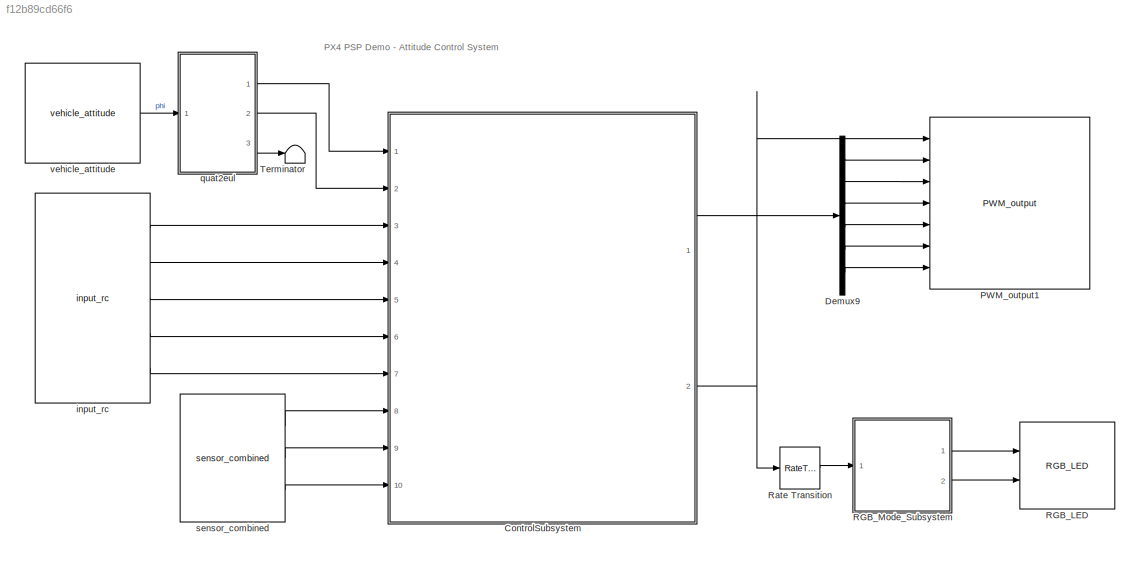
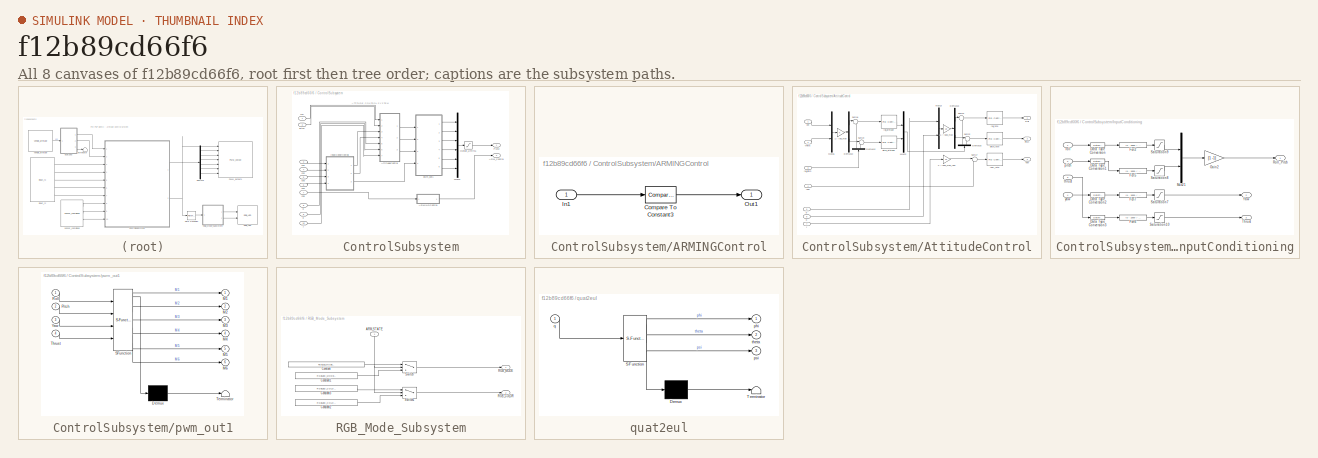
[diagram: thumbnail index - all 8 canvases of the model, root first then tree order]
MODEL slx_f12b89cd66f6
KIND model
CONFIG AbsTol = auto
CONFIG EnableMultiTasking = on
CONFIG FixedStep = auto
CONFIG MaxStep = auto
CONFIG MinStep = auto
CONFIG PostLoadFcn = kFactor = 1.2;\n\nKpRollAttitude = 0.630138625117681 / kFactor;\nKiRollAttitude = 0.0552303199591522 / kFactor;\n\nKpPitchAttitude = 0.630138625117681 / kFactor;\nKiPitchAttitude = 0.0552303199591522 / kFactor;\n\nKpRollRate = 1.31533836563383 / kFactor;\nKiRollRate = 0.460338699849681 / kFactor;\n\nKpPitchRate = 1.31533836563383 / kFactor;\nKiPitchRate = 0.460338699849681 / kFactor;\n\nKpYawRate = 1.3153383656...<+57ch>
CONFIG RelTol = 1e-3
CONFIG SampleTimeConstraint = Unconstrained
CONFIG Solver = FixedStepDiscrete
CONFIG SolverName = FixedStepDiscrete
CONFIG StartTime = 0.0
CONFIG StopTime = inf
BLOCK [SubSystem] ControlSubsystem
  Ports = [10, 2]
  RequestExecContextInheritance = off
  Variant = off
BLOCK [SubSystem] ControlSubsystem/ARMINGControl
  Ports = [1, 1]
  RequestExecContextInheritance = off
  Variant = off
BLOCK [Reference] ControlSubsystem/ARMINGControl/Compare To Constant3  REF=simulink/Logic and Bit
Operations/Compare
To Constant
  Ports = [1, 1]
  SourceBlock = simulink/Logic and Bit\nOperations/Compare\nTo Constant
  SourceProductBaseCode = SL
  SourceProductName = Simulink
  SourceType = Compare To Constant
BLOCK [Inport] ControlSubsystem/ARMINGControl/In1
  IconDisplay = Port number
BLOCK [Outport] ControlSubsystem/ARMINGControl/Out1
  IconDisplay = Port number
BLOCK [Outport] ControlSubsystem/ARM_Control
  IconDisplay = Port number
  Port = 2
  PortDimensions = 1
  SamplingMode = Sample based
  SignalType = real
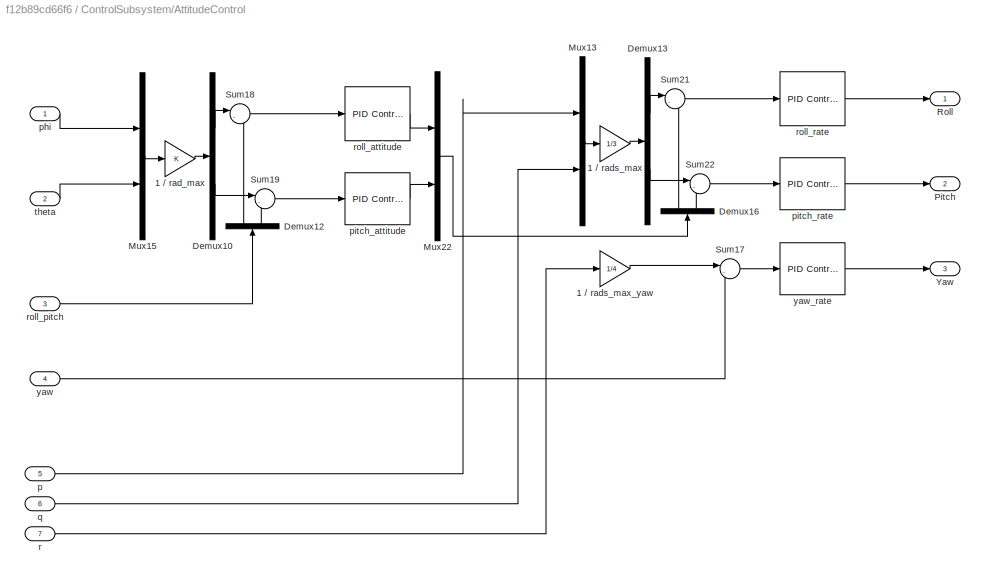
BLOCK [SubSystem] ControlSubsystem/AttitudeControl
  Ports = [7, 3]
  RequestExecContextInheritance = off
  Variant = off
BLOCK [Gain] ControlSubsystem/AttitudeControl/1 // rad_max
  OutDataTypeStr = Inherit: Inherit via internal rule
  ParamDataTypeStr = Inherit: Inherit via internal rule
  SaturateOnIntegerOverflow = off
BLOCK [Gain] ControlSubsystem/AttitudeControl/1 // rads_max
  Gain = 1/3
  OutDataTypeStr = Inherit: Inherit via internal rule
  ParamDataTypeStr = Inherit: Inherit via internal rule
  SaturateOnIntegerOverflow = off
BLOCK [Gain] ControlSubsystem/AttitudeControl/1 // rads_max_yaw
  Gain = 1/4
  OutDataTypeStr = Inherit: Inherit via internal rule
  ParamDataTypeStr = Inherit: Inherit via internal rule
  SaturateOnIntegerOverflow = off
BLOCK [Demux] ControlSubsystem/AttitudeControl/Demux10
  DisplayOption = bar
  Outputs = 2
  Ports = [1, 2]
BLOCK [Demux] ControlSubsystem/AttitudeControl/Demux12
  DisplayOption = bar
  Outputs = 2
  Ports = [1, 2]
BLOCK [Demux] ControlSubsystem/AttitudeControl/Demux13
  DisplayOption = bar
  Outputs = 2
  Ports = [1, 2]
BLOCK [Demux] ControlSubsystem/AttitudeControl/Demux16
  DisplayOption = bar
  Outputs = 2
  Ports = [1, 2]
BLOCK [Mux] ControlSubsystem/AttitudeControl/Mux13
  DisplayOption = bar
  Inputs = 2
  Ports = [2, 1]
BLOCK [Mux] ControlSubsystem/AttitudeControl/Mux15
  DisplayOption = bar
  Inputs = 2
  Ports = [2, 1]
BLOCK [Mux] ControlSubsystem/AttitudeControl/Mux22
  DisplayOption = bar
  Inputs = 2
  Ports = [2, 1]
BLOCK [Outport] ControlSubsystem/AttitudeControl/Pitch
  IconDisplay = Port number
  Port = 2
BLOCK [Outport] ControlSubsystem/AttitudeControl/Roll
  IconDisplay = Port number
BLOCK [Sum] ControlSubsystem/AttitudeControl/Sum17
  IconShape = round
  InputSameDT = off
  Inputs = |-+
  OutDataTypeStr = Inherit: Inherit via internal rule
  Ports = [2, 1]
  SaturateOnIntegerOverflow = off
BLOCK [Sum] ControlSubsystem/AttitudeControl/Sum18
  IconShape = round
  InputSameDT = off
  Inputs = |-+
  OutDataTypeStr = Inherit: Inherit via internal rule
  Ports = [2, 1]
  SaturateOnIntegerOverflow = off
BLOCK [Sum] ControlSubsystem/AttitudeControl/Sum19
  IconShape = round
  InputSameDT = off
  Inputs = |-+
  OutDataTypeStr = Inherit: Inherit via internal rule
  Ports = [2, 1]
  SaturateOnIntegerOverflow = off
BLOCK [Sum] ControlSubsystem/AttitudeControl/Sum21
  IconShape = round
  InputSameDT = off
  Inputs = |-+
  OutDataTypeStr = Inherit: Inherit via internal rule
  Ports = [2, 1]
  SaturateOnIntegerOverflow = off
BLOCK [Sum] ControlSubsystem/AttitudeControl/Sum22
  IconShape = round
  InputSameDT = off
  Inputs = |-+
  OutDataTypeStr = Inherit: Inherit via internal rule
  Ports = [2, 1]
  SaturateOnIntegerOverflow = off
BLOCK [Outport] ControlSubsystem/AttitudeControl/Yaw
  IconDisplay = Port number
  Port = 3
BLOCK [Inport] ControlSubsystem/AttitudeControl/p
  IconDisplay = Port number
  Port = 5
BLOCK [Inport] ControlSubsystem/AttitudeControl/phi
  IconDisplay = Port number
BLOCK [Reference] ControlSubsystem/AttitudeControl/pitch_attitude  REF=simulink/Continuous/PID Controller
  Ports = [1, 1]
  SourceBlock = simulink/Continuous/PID Controller
  SourceProductBaseCode = SL
  SourceProductName = Simulink
  SourceType = PID 1dof
BLOCK [Reference] ControlSubsystem/AttitudeControl/pitch_rate  REF=simulink/Continuous/PID Controller
  Ports = [1, 1]
  SourceBlock = simulink/Continuous/PID Controller
  SourceProductBaseCode = SL
  SourceProductName = Simulink
  SourceType = PID 1dof
BLOCK [Inport] ControlSubsystem/AttitudeControl/q
  IconDisplay = Port number
  Port = 6
BLOCK [Inport] ControlSubsystem/AttitudeControl/r
  IconDisplay = Port number
  Port = 7
BLOCK [Reference] ControlSubsystem/AttitudeControl/roll_attitude  REF=simulink/Continuous/PID Controller
  Ports = [1, 1]
  SourceBlock = simulink/Continuous/PID Controller
  SourceProductBaseCode = SL
  SourceProductName = Simulink
  SourceType = PID 1dof
BLOCK [Inport] ControlSubsystem/AttitudeControl/roll_pitch
  IconDisplay = Port number
  Port = 3
BLOCK [Reference] ControlSubsystem/AttitudeControl/roll_rate  REF=simulink/Continuous/PID Controller
  Ports = [1, 1]
  SourceBlock = simulink/Continuous/PID Controller
  SourceProductBaseCode = SL
  SourceProductName = Simulink
  SourceType = PID 1dof
BLOCK [Inport] ControlSubsystem/AttitudeControl/theta
  IconDisplay = Port number
  Port = 2
BLOCK [Inport] ControlSubsystem/AttitudeControl/yaw
  IconDisplay = Port number
  Port = 4
BLOCK [Reference] ControlSubsystem/AttitudeControl/yaw_rate  REF=simulink/Continuous/PID Controller
  Ports = [1, 1]
  SourceBlock = simulink/Continuous/PID Controller
  SourceProductBaseCode = SL
  SourceProductName = Simulink
  SourceType = PID 1dof
BLOCK [SubSystem] ControlSubsystem/InputConditioning
  Ports = [4, 3]
  RequestExecContextInheritance = off
  Variant = off
BLOCK [DataTypeConversion] ControlSubsystem/InputConditioning/Data Type Conversion
  OutDataTypeStr = single
  RndMeth = Floor
  SaturateOnIntegerOverflow = off
BLOCK [DataTypeConversion] ControlSubsystem/InputConditioning/Data Type Conversion1
  OutDataTypeStr = single
  RndMeth = Floor
  SaturateOnIntegerOverflow = off
BLOCK [DataTypeConversion] ControlSubsystem/InputConditioning/Data Type Conversion2
  OutDataTypeStr = single
  RndMeth = Floor
  SaturateOnIntegerOverflow = off
BLOCK [DataTypeConversion] ControlSubsystem/InputConditioning/Data Type Conversion3
  OutDataTypeStr = single
  RndMeth = Floor
  SaturateOnIntegerOverflow = off
BLOCK [Fcn] ControlSubsystem/InputConditioning/Fcn2
  Expr = (u - 1500) / 500
BLOCK [Fcn] ControlSubsystem/InputConditioning/Fcn5
  Expr = (u - 1500) / 500
BLOCK [Fcn] ControlSubsystem/InputConditioning/Fcn6
  Expr = (u - 1000) / 1000
BLOCK [Fcn] ControlSubsystem/InputConditioning/Fcn7
  Expr = (u - 1500) / 500
BLOCK [Gain] ControlSubsystem/InputConditioning/Gain2
  Gain = [1 -1]
  OutDataTypeStr = Inherit: Inherit via back propagation
  ParamDataTypeStr = Inherit: Inherit via internal rule
  SaturateOnIntegerOverflow = off
BLOCK [Mux] ControlSubsystem/InputConditioning/Mux21
  DisplayOption = bar
  Inputs = 2
  Ports = [2, 1]
BLOCK [Outport] ControlSubsystem/InputConditioning/Roll_Pitch
  IconDisplay = Port number
BLOCK [Saturate] ControlSubsystem/InputConditioning/Saturation10
  InputPortMap = u0
  LowerLimit = 0
  Ports = [1, 1]
  UpperLimit = 1
BLOCK [Saturate] ControlSubsystem/InputConditioning/Saturation7
  InputPortMap = u0
  LowerLimit = -1
  Ports = [1, 1]
  UpperLimit = 1
BLOCK [Saturate] ControlSubsystem/InputConditioning/Saturation8
  InputPortMap = u0
  LowerLimit = -1
  Ports = [1, 1]
  UpperLimit = 1
BLOCK [Saturate] ControlSubsystem/InputConditioning/Saturation9
  InputPortMap = u0
  LowerLimit = -1
  Ports = [1, 1]
  UpperLimit = 1
BLOCK [Outport] ControlSubsystem/InputConditioning/Thrust
  IconDisplay = Port number
  Port = 3
BLOCK [Outport] ControlSubsystem/InputConditioning/Yaw
  IconDisplay = Port number
  Port = 2
BLOCK [Inport] ControlSubsystem/InputConditioning/pitch
  IconDisplay = Port number
  Port = 2
BLOCK [Inport] ControlSubsystem/InputConditioning/roll
  IconDisplay = Port number
BLOCK [Inport] ControlSubsystem/InputConditioning/thrust
  IconDisplay = Port number
  Port = 3
BLOCK [Inport] ControlSubsystem/InputConditioning/yaw
  IconDisplay = Port number
  Port = 4
BLOCK [Mux] ControlSubsystem/Mux12
  DisplayOption = bar
  Inputs = 6
  Ports = [6, 1]
BLOCK [Saturate] ControlSubsystem/Output_Limits1
  InputPortMap = u0
  LowerLimit = 1000
  Ports = [1, 1]
  UpperLimit = 2001
BLOCK [Outport] ControlSubsystem/PWM
  IconDisplay = Port number
  PortDimensions = 6
  SamplingMode = Sample based
  SignalType = real
BLOCK [Inport] ControlSubsystem/ch1
  IconDisplay = Port number
  OutDataTypeStr = uint16
  Port = 3
  PortDimensions = 1
  SamplingMode = Sample based
  SignalType = real
BLOCK [Inport] ControlSubsystem/ch2
  IconDisplay = Port number
  OutDataTypeStr = uint16
  Port = 4
  PortDimensions = 1
  SamplingMode = Sample based
  SignalType = real
BLOCK [Inport] ControlSubsystem/ch3
  IconDisplay = Port number
  OutDataTypeStr = uint16
  Port = 5
  PortDimensions = 1
  SamplingMode = Sample based
  SignalType = real
BLOCK [Inport] ControlSubsystem/ch4
  IconDisplay = Port number
  OutDataTypeStr = uint16
  Port = 6
  PortDimensions = 1
  SamplingMode = Sample based
  SignalType = real
BLOCK [Inport] ControlSubsystem/ch5
  IconDisplay = Port number
  Interpolate = off
  OutDataTypeStr = uint16
  Port = 7
  PortDimensions = 1
  SamplingMode = Sample based
  SignalType = real
BLOCK [Inport] ControlSubsystem/p
  IconDisplay = Port number
  Port = 8
  PortDimensions = 1
  SamplingMode = Sample based
  SignalType = real
BLOCK [Inport] ControlSubsystem/pitch
  IconDisplay = Port number
  Port = 2
  PortDimensions = 1
  SamplingMode = Sample based
  SignalType = real
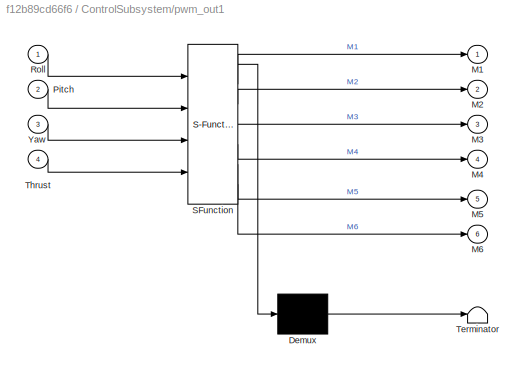
BLOCK [SubSystem] ControlSubsystem/pwm_out1
  ErrorFcn = Stateflow.Translate.translate
  PermitHierarchicalResolution = ExplicitOnly
  Ports = [4, 6]
  RequestExecContextInheritance = off
  SFBlockType = MATLAB Function
  SystemSampleTime = 0.004
  TreatAsAtomicUnit = on
  Variant = off
BLOCK [Demux] ControlSubsystem/pwm_out1/ Demux 
  Outputs = 1
  Ports = [1, 1]
BLOCK [S-Function] ControlSubsystem/pwm_out1/ SFunction 
  EnableBusSupport = off
  FunctionName = sf_sfun
  PortCounts = [4 7]
  Ports = [4, 7]
  SFcnIsStateOwnerBlock = off
  SFunctionDeploymentMode = off
  Tag = Stateflow S-Function px4demo_attitude_system 4
BLOCK [Terminator] ControlSubsystem/pwm_out1/ Terminator 
BLOCK [Outport] ControlSubsystem/pwm_out1/M1
  IconDisplay = Port number
BLOCK [Outport] ControlSubsystem/pwm_out1/M2
  IconDisplay = Port number
  Port = 2
BLOCK [Outport] ControlSubsystem/pwm_out1/M3
  IconDisplay = Port number
  Port = 3
BLOCK [Outport] ControlSubsystem/pwm_out1/M4
  IconDisplay = Port number
  Port = 4
BLOCK [Outport] ControlSubsystem/pwm_out1/M5
  IconDisplay = Port number
  Port = 5
BLOCK [Outport] ControlSubsystem/pwm_out1/M6
  IconDisplay = Port number
  Port = 6
BLOCK [Inport] ControlSubsystem/pwm_out1/Pitch
  IconDisplay = Port number
  Port = 2
BLOCK [Inport] ControlSubsystem/pwm_out1/Roll
  IconDisplay = Port number
BLOCK [Inport] ControlSubsystem/pwm_out1/Thrust
  IconDisplay = Port number
  Port = 4
BLOCK [Inport] ControlSubsystem/pwm_out1/Yaw
  IconDisplay = Port number
  Port = 3
BLOCK [Inport] ControlSubsystem/q
  IconDisplay = Port number
  Port = 9
  PortDimensions = 1
  SamplingMode = Sample based
  SignalType = real
BLOCK [Inport] ControlSubsystem/r
  IconDisplay = Port number
  Port = 10
  PortDimensions = 1
  SamplingMode = Sample based
  SignalType = real
BLOCK [Inport] ControlSubsystem/roll
  IconDisplay = Port number
  OutDataTypeStr = single
  PortDimensions = 1
  SamplingMode = Sample based
  SignalType = real
BLOCK [Demux] Demux9
  DisplayOption = bar
  Outputs = 6
  Ports = [1, 6]
BLOCK [Reference] PWM_output1  REF=pixhawk_slib_sensors_actuators/PWM_output
  Ports = [7]
  SourceBlock = pixhawk_slib_sensors_actuators/PWM_output
  SourceProductName = Pixhawk Target Blocks
  SourceType = PX4_Output_PWM
BLOCK [Reference] RGB_LED  REF=pixhawk_slib_sensors_actuators/RGB_LED
  Ports = [2]
  SourceBlock = pixhawk_slib_sensors_actuators/RGB_LED
  SourceProductName = Pixhawk Target Blocks
  SourceType = PX4_RGBLED - controls the mode and color of the Pixhawk RGB LED
BLOCK [SubSystem] RGB_Mode_Subsystem
  Ports = [1, 2]
  RequestExecContextInheritance = off
  Variant = off
BLOCK [Inport] RGB_Mode_Subsystem/ARM_STATE
  IconDisplay = Port number
BLOCK [Constant] RGB_Mode_Subsystem/Constant
  OutDataTypeStr = Enum: RGBLED_MODE_ENUM
  Value = RGBLED_MODE_ENUM.SL_MODE_BLINK_FAST
BLOCK [Constant] RGB_Mode_Subsystem/Constant1
  OutDataTypeStr = Enum: RGBLED_MODE_ENUM
  Value = RGBLED_MODE_ENUM.SL_MODE_BREATHE
BLOCK [Constant] RGB_Mode_Subsystem/Constant2
  OutDataTypeStr = Enum: RGBLED_COLOR_ENUM
  Value = RGBLED_COLOR_ENUM.SL_COLOR_GREEN
BLOCK [Constant] RGB_Mode_Subsystem/Constant3
  OutDataTypeStr = Enum: RGBLED_COLOR_ENUM
  Value = RGBLED_COLOR_ENUM.SL_COLOR_RED
BLOCK [Outport] RGB_Mode_Subsystem/RGB_COLOR
  IconDisplay = Port number
  Port = 2
BLOCK [Outport] RGB_Mode_Subsystem/RGB_MODE
  IconDisplay = Port number
BLOCK [Switch] RGB_Mode_Subsystem/Switch
  Criteria = u2 ~= 0
  InputSameDT = off
  SaturateOnIntegerOverflow = off
  Threshold = 1500
BLOCK [Switch] RGB_Mode_Subsystem/Switch1
  Criteria = u2 ~= 0
  InputSameDT = off
  SaturateOnIntegerOverflow = off
  Threshold = 1500
BLOCK [RateTransition] Rate Transition
  OutPortSampleTime = 1
BLOCK [Terminator] Terminator
BLOCK [Reference] input_rc  REF=pixhawk_slib_sensors_actuators/input_rc
  Ports = [0, 5]
  SourceBlock = pixhawk_slib_sensors_actuators/input_rc
  SourceProductName = Pixhawk Target Blocks
  SourceType = PX4_Input_RC
BLOCK [SubSystem] quat2eul
  ErrorFcn = Stateflow.Translate.translate
  PermitHierarchicalResolution = ExplicitOnly
  Ports = [1, 3]
  RequestExecContextInheritance = off
  SFBlockType = MATLAB Function
  TreatAsAtomicUnit = on
  Variant = off
BLOCK [Demux] quat2eul/ Demux 
  Outputs = 1
  Ports = [1, 1]
BLOCK [S-Function] quat2eul/ SFunction 
  EnableBusSupport = on
  FunctionName = sf_sfun
  PortCounts = [1 4]
  Ports = [1, 4]
  SFcnIsStateOwnerBlock = off
  SFunctionDeploymentMode = off
  Tag = Stateflow S-Function px4demo_attitude_system 10
BLOCK [Terminator] quat2eul/ Terminator 
BLOCK [Outport] quat2eul/phi
  IconDisplay = Port number
BLOCK [Outport] quat2eul/psi
  IconDisplay = Port number
  Port = 3
BLOCK [Inport] quat2eul/q
  IconDisplay = Port number
BLOCK [Outport] quat2eul/theta
  IconDisplay = Port number
  Port = 2
BLOCK [Reference] sensor_combined  REF=pixhawk_slib_sensors_actuators/sensor_combined
  Ports = [0, 3]
  SourceBlock = pixhawk_slib_sensors_actuators/sensor_combined
  SourceProductName = Pixhawk Target Blocks
  SourceType = PX4_Sensor_Combined
BLOCK [Reference] vehicle_attitude  REF=pixhawk_slib_sensors_actuators/vehicle_attitude
  Ports = [0, 1]
  SourceBlock = pixhawk_slib_sensors_actuators/vehicle_attitude
  SourceProductName = Pixhawk Target Blocks
  SourceType = PX4_Vehicle_Attitude
ANNOTATION (root): PX4 PSP Demo - Attitude Control System
ANNOTATION ControlSubsystem: ATTITUDE CONTROL SYSTEM
LINE ControlSubsystem/ARMINGControl/Compare To Constant3:1 -> ControlSubsystem/ARMINGControl/Out1:1
LINE ControlSubsystem/ARMINGControl/In1:1 -> ControlSubsystem/ARMINGControl/Compare To Constant3:1
LINE ControlSubsystem/ARMINGControl:1 -> ControlSubsystem/ARM_Control:1
LINE ControlSubsystem/AttitudeControl/1 // rad_max:1 -> ControlSubsystem/AttitudeControl/Demux10:1
LINE ControlSubsystem/AttitudeControl/1 // rads_max:1 -> ControlSubsystem/AttitudeControl/Demux13:1
LINE ControlSubsystem/AttitudeControl/1 // rads_max_yaw:1 -> ControlSubsystem/AttitudeControl/Sum17:1
LINE ControlSubsystem/AttitudeControl/Demux10:1 -> ControlSubsystem/AttitudeControl/Sum18:1
LINE ControlSubsystem/AttitudeControl/Demux10:2 -> ControlSubsystem/AttitudeControl/Sum19:1
LINE ControlSubsystem/AttitudeControl/Demux12:1 -> ControlSubsystem/AttitudeControl/Sum18:2
LINE ControlSubsystem/AttitudeControl/Demux12:2 -> ControlSubsystem/AttitudeControl/Sum19:2
LINE ControlSubsystem/AttitudeControl/Demux13:1 -> ControlSubsystem/AttitudeControl/Sum21:1
LINE ControlSubsystem/AttitudeControl/Demux13:2 -> ControlSubsystem/AttitudeControl/Sum22:1
LINE ControlSubsystem/AttitudeControl/Demux16:1 -> ControlSubsystem/AttitudeControl/Sum21:2
LINE ControlSubsystem/AttitudeControl/Demux16:2 -> ControlSubsystem/AttitudeControl/Sum22:2
LINE ControlSubsystem/AttitudeControl/Mux13:1 -> ControlSubsystem/AttitudeControl/1 // rads_max:1
LINE ControlSubsystem/AttitudeControl/Mux15:1 -> ControlSubsystem/AttitudeControl/1 // rad_max:1
LINE ControlSubsystem/AttitudeControl/Mux22:1 -> ControlSubsystem/AttitudeControl/Demux16:1
LINE ControlSubsystem/AttitudeControl/Sum17:1 -> ControlSubsystem/AttitudeControl/yaw_rate:1
LINE ControlSubsystem/AttitudeControl/Sum18:1 -> ControlSubsystem/AttitudeControl/roll_attitude:1
LINE ControlSubsystem/AttitudeControl/Sum19:1 -> ControlSubsystem/AttitudeControl/pitch_attitude:1
LINE ControlSubsystem/AttitudeControl/Sum21:1 -> ControlSubsystem/AttitudeControl/roll_rate:1
LINE ControlSubsystem/AttitudeControl/Sum22:1 -> ControlSubsystem/AttitudeControl/pitch_rate:1
LINE ControlSubsystem/AttitudeControl/p:1 -> ControlSubsystem/AttitudeControl/Mux13:1
LINE ControlSubsystem/AttitudeControl/phi:1 -> ControlSubsystem/AttitudeControl/Mux15:1
LINE ControlSubsystem/AttitudeControl/pitch_attitude:1 -> ControlSubsystem/AttitudeControl/Mux22:2
LINE ControlSubsystem/AttitudeControl/pitch_rate:1 -> ControlSubsystem/AttitudeControl/Pitch:1
LINE ControlSubsystem/AttitudeControl/q:1 -> ControlSubsystem/AttitudeControl/Mux13:2
LINE ControlSubsystem/AttitudeControl/r:1 -> ControlSubsystem/AttitudeControl/1 // rads_max_yaw:1
LINE ControlSubsystem/AttitudeControl/roll_attitude:1 -> ControlSubsystem/AttitudeControl/Mux22:1
LINE ControlSubsystem/AttitudeControl/roll_pitch:1 -> ControlSubsystem/AttitudeControl/Demux12:1
LINE ControlSubsystem/AttitudeControl/roll_rate:1 -> ControlSubsystem/AttitudeControl/Roll:1
LINE ControlSubsystem/AttitudeControl/theta:1 -> ControlSubsystem/AttitudeControl/Mux15:2
LINE ControlSubsystem/AttitudeControl/yaw:1 -> ControlSubsystem/AttitudeControl/Sum17:2
LINE ControlSubsystem/AttitudeControl/yaw_rate:1 -> ControlSubsystem/AttitudeControl/Yaw:1
LINE ControlSubsystem/AttitudeControl:1 -> ControlSubsystem/pwm_out1:1
LINE ControlSubsystem/AttitudeControl:2 -> ControlSubsystem/pwm_out1:2
LINE ControlSubsystem/AttitudeControl:3 -> ControlSubsystem/pwm_out1:3
LINE ControlSubsystem/InputConditioning/Data Type Conversion1:1 -> ControlSubsystem/InputConditioning/Fcn5:1
LINE ControlSubsystem/InputConditioning/Data Type Conversion2:1 -> ControlSubsystem/InputConditioning/Fcn7:1
LINE ControlSubsystem/InputConditioning/Data Type Conversion3:1 -> ControlSubsystem/InputConditioning/Fcn6:1
LINE ControlSubsystem/InputConditioning/Data Type Conversion:1 -> ControlSubsystem/InputConditioning/Fcn2:1
LINE ControlSubsystem/InputConditioning/Fcn2:1 -> ControlSubsystem/InputConditioning/Saturation9:1
LINE ControlSubsystem/InputConditioning/Fcn5:1 -> ControlSubsystem/InputConditioning/Saturation8:1
LINE ControlSubsystem/InputConditioning/Fcn6:1 -> ControlSubsystem/InputConditioning/Saturation10:1
LINE ControlSubsystem/InputConditioning/Fcn7:1 -> ControlSubsystem/InputConditioning/Saturation7:1
LINE ControlSubsystem/InputConditioning/Gain2:1 -> ControlSubsystem/InputConditioning/Roll_Pitch:1
LINE ControlSubsystem/InputConditioning/Mux21:1 -> ControlSubsystem/InputConditioning/Gain2:1
LINE ControlSubsystem/InputConditioning/Saturation10:1 -> ControlSubsystem/InputConditioning/Thrust:1
LINE ControlSubsystem/InputConditioning/Saturation7:1 -> ControlSubsystem/InputConditioning/Yaw:1
LINE ControlSubsystem/InputConditioning/Saturation8:1 -> ControlSubsystem/InputConditioning/Mux21:2
LINE ControlSubsystem/InputConditioning/Saturation9:1 -> ControlSubsystem/InputConditioning/Mux21:1
LINE ControlSubsystem/InputConditioning/pitch:1 -> ControlSubsystem/InputConditioning/Data Type Conversion1:1
LINE ControlSubsystem/InputConditioning/roll:1 -> ControlSubsystem/InputConditioning/Data Type Conversion:1
LINE ControlSubsystem/InputConditioning/thrust:1 -> ControlSubsystem/InputConditioning/Data Type Conversion3:1
LINE ControlSubsystem/InputConditioning/yaw:1 -> ControlSubsystem/InputConditioning/Data Type Conversion2:1
LINE ControlSubsystem/InputConditioning:1 -> ControlSubsystem/AttitudeControl:3
LINE ControlSubsystem/InputConditioning:2 -> ControlSubsystem/AttitudeControl:4
LINE ControlSubsystem/InputConditioning:3 -> ControlSubsystem/pwm_out1:4
LINE ControlSubsystem/Mux12:1 -> ControlSubsystem/Output_Limits1:1
LINE ControlSubsystem/Output_Limits1:1 -> ControlSubsystem/PWM:1
LINE ControlSubsystem/ch1:1 -> ControlSubsystem/InputConditioning:1
LINE ControlSubsystem/ch2:1 -> ControlSubsystem/InputConditioning:2
LINE ControlSubsystem/ch3:1 -> ControlSubsystem/InputConditioning:3
LINE ControlSubsystem/ch4:1 -> ControlSubsystem/InputConditioning:4
LINE ControlSubsystem/ch5:1 -> ControlSubsystem/ARMINGControl:1
LINE ControlSubsystem/p:1 -> ControlSubsystem/AttitudeControl:5
LINE ControlSubsystem/pitch:1 -> ControlSubsystem/AttitudeControl:2
LINE ControlSubsystem/pwm_out1:1 -> ControlSubsystem/Mux12:1
LINE ControlSubsystem/pwm_out1:2 -> ControlSubsystem/Mux12:2
LINE ControlSubsystem/pwm_out1:3 -> ControlSubsystem/Mux12:3
LINE ControlSubsystem/pwm_out1:4 -> ControlSubsystem/Mux12:4
LINE ControlSubsystem/pwm_out1:5 -> ControlSubsystem/Mux12:5
LINE ControlSubsystem/pwm_out1:6 -> ControlSubsystem/Mux12:6
LINE ControlSubsystem/q:1 -> ControlSubsystem/AttitudeControl:6
LINE ControlSubsystem/r:1 -> ControlSubsystem/AttitudeControl:7
LINE ControlSubsystem/roll:1 -> ControlSubsystem/AttitudeControl:1
LINE ControlSubsystem:1 -> Demux9:1
NET ControlSubsystem:2 -> PWM_output1:1, Rate Transition:1
LINE Demux9:1 -> PWM_output1:2
LINE Demux9:2 -> PWM_output1:3
LINE Demux9:3 -> PWM_output1:4
LINE Demux9:4 -> PWM_output1:5
LINE Demux9:5 -> PWM_output1:6
LINE Demux9:6 -> PWM_output1:7
NET RGB_Mode_Subsystem/ARM_STATE:1 -> RGB_Mode_Subsystem/Switch1:2, RGB_Mode_Subsystem/Switch:2
LINE RGB_Mode_Subsystem/Constant1:1 -> RGB_Mode_Subsystem/Switch:3
LINE RGB_Mode_Subsystem/Constant2:1 -> RGB_Mode_Subsystem/Switch1:3
LINE RGB_Mode_Subsystem/Constant3:1 -> RGB_Mode_Subsystem/Switch1:1
LINE RGB_Mode_Subsystem/Constant:1 -> RGB_Mode_Subsystem/Switch:1
LINE RGB_Mode_Subsystem/Switch1:1 -> RGB_Mode_Subsystem/RGB_COLOR:1
LINE RGB_Mode_Subsystem/Switch:1 -> RGB_Mode_Subsystem/RGB_MODE:1
LINE RGB_Mode_Subsystem:1 -> RGB_LED:1
LINE RGB_Mode_Subsystem:2 -> RGB_LED:2
LINE Rate Transition:1 -> RGB_Mode_Subsystem:1
LINE input_rc:1 -> ControlSubsystem:3
LINE input_rc:2 -> ControlSubsystem:4
LINE input_rc:3 -> ControlSubsystem:5
LINE input_rc:4 -> ControlSubsystem:6
LINE input_rc:5 -> ControlSubsystem:7
LINE quat2eul:1 -> ControlSubsystem:1
LINE quat2eul:2 -> ControlSubsystem:2
LINE quat2eul:3 -> Terminator:1
LINE sensor_combined:1 -> ControlSubsystem:8
LINE sensor_combined:2 -> ControlSubsystem:9
LINE sensor_combined:3 -> ControlSubsystem:10
LINE vehicle_attitude:1 -> quat2eul:1
note: NET lines group one-source signal fan-out (src -> all destinations, sorted); 1:1 wires keep LINE
CHART ControlSubsystem/pwm_out1 states=1 transitions=1
  STATE_LABEL 'eML_blk_kernel()'
  STATE_LABEL 'SCRIPT:\nfunction [M1, M2, M3, M4, M5, M6] = motor_mixer(Roll, Pitch, Yaw, Thrust)\n\nidle_PWM = uint16(1000);\n\n% Quad X\n% M1 = ((Roll + Pitch - Yaw) / 2 * Thrust + Thrust) * 1000 + idle_PWM;\n% M2 = ((-Roll + Pitch + Yaw) / 2 * Thrust + Thrust) * 1000 + idle_PWM;\n% M3 = ((-Roll - Pitch - Yaw) / 2 * Thrust + Thrust) * 1000 + idle_PWM;\n% M4 = ((Roll - Pitch + Yaw) / 2 * Thrust + Thrust) * 1000 + idle_P...<+1925ch>'
CHART quat2eul states=1 transitions=1
  STATE_LABEL 'eML_blk_kernel()'
  STATE_LABEL 'SCRIPT:\nfunction [phi,theta,psi] = quat2eul(q)\n% Conversion from Quaternion to Euler angles based on the PX4 Firmware\n% v1.6.5 release.\n% \n% Quaternion -> DCM -> Euler Angles\n% INPUT:\n%   q: Quaternion vector of the format: (a + bi + cj + dk)\n% OUTPUT:\n%   [phi,theta,psi]: Euler angles in radians.\n% \n \n    a = q(1);\n    b = q(2);\n    c = q(3);\n    d = q(4);\n\n    aSq = a*a;\n    bSq = b*b;\n    cSq =...<+673ch>'
